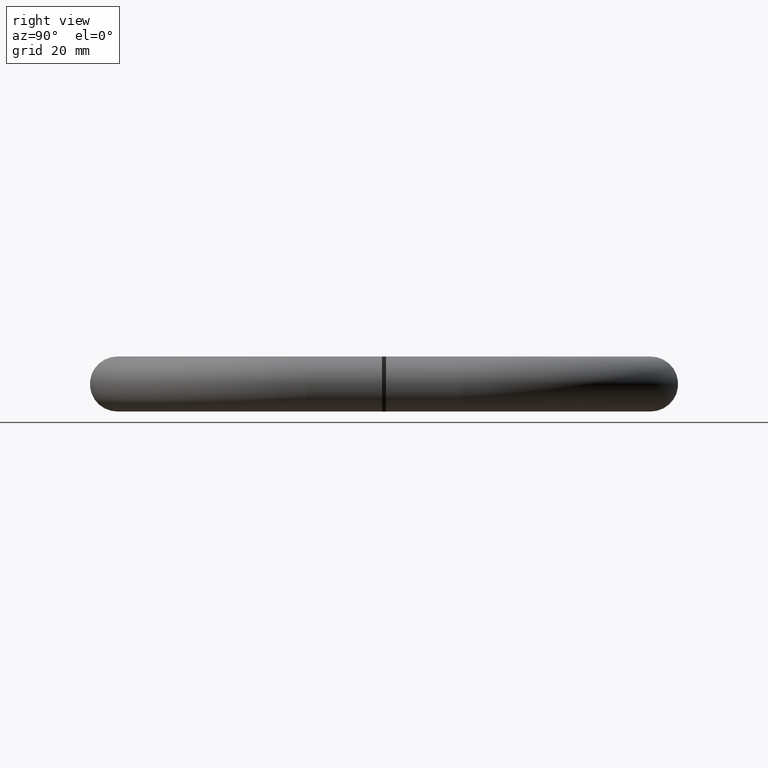
[diagram: clean part render]
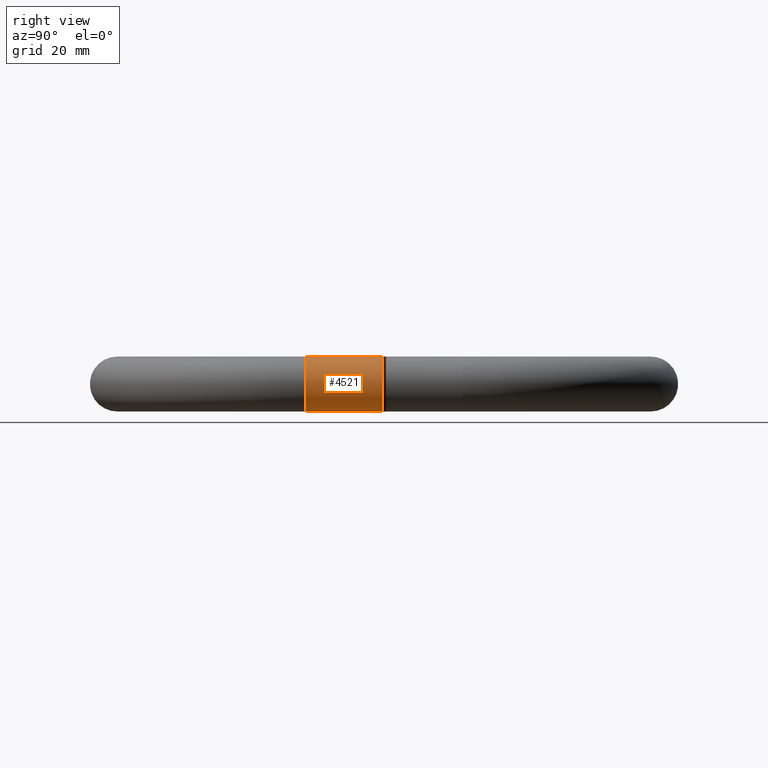
[diagram: same view with one face highlighted and labeled with its STEP entity id]
A machine part, right view. The second image highlights one B-rep face of the part: STEP entity #4521.
In plain terms, the highlighted cylindrical surface (bore or boss wall) has radius 7 mm, axis along (0, -1, 0).
Its self-contained STEP definition (entity closure, byte-faithful):
#534 = VERTEX_POINT ( 'NONE', #4094 ) ;
#1290 = ORIENTED_EDGE ( 'NONE', *, *, #3875, .T. ) ;
#2134 = FACE_OUTER_BOUND ( 'NONE', #7068, .T. ) ;
#2489 = VERTEX_POINT ( 'NONE', #7932 ) ;
#3450 = DIRECTION ( 'NONE',  ( 0.0000000000000000000, -1.000000000000000000, 0.0000000000000000000 ) ) ;
#3819 = AXIS2_PLACEMENT_3D ( 'NONE', #9857, #5167, #5097 ) ;
#3874 = EDGE_LOOP ( 'NONE', ( #1290 ) ) ;
#3875 = EDGE_CURVE ( 'NONE', #534, #534, #4455, .T. ) ;
#3941 = FACE_OUTER_BOUND ( 'NONE', #3874, .T. ) ;
#4094 = CARTESIAN_POINT ( 'NONE',  ( 48.00000000000000000, 74.50000000000000000, -7.000000000000000000 ) ) ;
#4455 = CIRCLE ( 'NONE', #5058, 7.000000000000000000 ) ;
#4521 = ADVANCED_FACE ( 'NONE', ( #2134, #3941 ), #8104, .T. ) ;
#5055 = DIRECTION ( 'NONE',  ( 0.0000000000000000000, 0.0000000000000000000, -1.000000000000000000 ) ) ;
#5058 = AXIS2_PLACEMENT_3D ( 'NONE', #5892, #3450, #5055 ) ;
#5097 = DIRECTION ( 'NONE',  ( 0.0000000000000000000, 0.0000000000000000000, -1.000000000000000000 ) ) ;
#5167 = DIRECTION ( 'NONE',  ( 0.0000000000000000000, -1.000000000000000000, 0.0000000000000000000 ) ) ;
#5380 = ORIENTED_EDGE ( 'NONE', *, *, #7529, .T. ) ;
#5892 = CARTESIAN_POINT ( 'NONE',  ( 48.00000000000000000, 74.50000000000000000, 0.0000000000000000000 ) ) ;
#7068 = EDGE_LOOP ( 'NONE', ( #5380 ) ) ;
#7529 = EDGE_CURVE ( 'NONE', #2489, #2489, #9986, .T. ) ;
#7670 = CARTESIAN_POINT ( 'NONE',  ( 48.00000000000000000, 55.00000000000001400, 0.0000000000000000000 ) ) ;
#7932 = CARTESIAN_POINT ( 'NONE',  ( 48.00000000000000000, 55.00000000000001400, -7.000000000000000000 ) ) ;
#8104 = CYLINDRICAL_SURFACE ( 'NONE', #3819, 7.000000000000000000 ) ;
#8188 = AXIS2_PLACEMENT_3D ( 'NONE', #7670, #8407, #8445 ) ;
#8407 = DIRECTION ( 'NONE',  ( -1.836970198721029700E-016, 1.000000000000000000, 0.0000000000000000000 ) ) ;
#8445 = DIRECTION ( 'NONE',  ( 0.0000000000000000000, 0.0000000000000000000, -1.000000000000000000 ) ) ;
#9857 = CARTESIAN_POINT ( 'NONE',  ( 48.00000000000000000, 95.00000000000001400, 0.0000000000000000000 ) ) ;
#9986 = CIRCLE ( 'NONE', #8188, 7.000000000000000000 ) ;